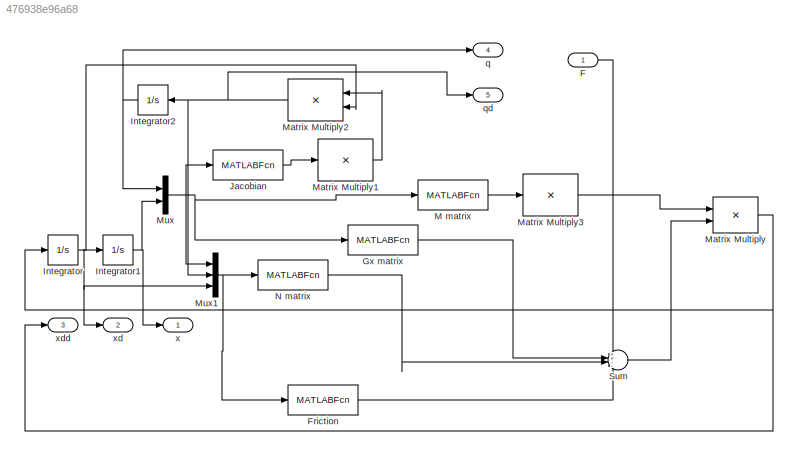
MODEL slx_476938e96a68
KIND model
CONFIG AbsTol = auto
CONFIG EnableMultiTasking = off
CONFIG FixedStep = auto
CONFIG MaxStep = auto
CONFIG MinStep = auto
CONFIG RelTol = 1e-3
CONFIG SampleTimeConstraint = Unconstrained
CONFIG Solver = VariableStepAuto
CONFIG SolverName = VariableStepAuto
CONFIG StartTime = 0.0
CONFIG StopTime = 10.0
BLOCK [Inport] F
  IconDisplay = Port number
  PortDimensions = 3
BLOCK [MATLABFcn] Friction
  MATLABFcn = frictionMatrix(u)
  Output1D = off
  OutputDimensions = 3
  Ports = [1, 1]
BLOCK [MATLABFcn] Gx matrix
  MATLABFcn = Gxmatrix(u)
  Output1D = off
  OutputDimensions = 3
  Ports = [1, 1]
BLOCK [Integrator] Integrator
  InitialCondition = xd0
  Ports = [1, 1]
BLOCK [Integrator] Integrator1
  InitialCondition = x0
  Ports = [1, 1]
BLOCK [Integrator] Integrator2
  InitialCondition = q0
  Ports = [1, 1]
BLOCK [MATLABFcn] Jacobian
  MATLABFcn = deltaJacobian(u)
  Output1D = off
  Ports = [1, 1]
BLOCK [MATLABFcn] M matrix
  MATLABFcn = Mmatrix(u)
  Output1D = off
  Ports = [1, 1]
BLOCK [Product] Matrix Multiply
  InputSameDT = off
  Multiplication = Matrix(*)
  OutDataTypeStr = Inherit: Inherit via internal rule
  Ports = [2, 1]
  RndMeth = Floor
  SaturateOnIntegerOverflow = off
BLOCK [Product] Matrix Multiply1
  InputSameDT = off
  Inputs = /
  Multiplication = Matrix(*)
  OutDataTypeStr = Inherit: Inherit via internal rule
  Ports = [1, 1]
  RndMeth = Floor
  SaturateOnIntegerOverflow = off
BLOCK [Product] Matrix Multiply2
  InputSameDT = off
  Multiplication = Matrix(*)
  OutDataTypeStr = Inherit: Inherit via internal rule
  Ports = [2, 1]
  RndMeth = Floor
  SaturateOnIntegerOverflow = off
BLOCK [Product] Matrix Multiply3
  InputSameDT = off
  Inputs = /
  Multiplication = Matrix(*)
  OutDataTypeStr = Inherit: Inherit via internal rule
  Ports = [1, 1]
  RndMeth = Floor
  SaturateOnIntegerOverflow = off
BLOCK [Mux] Mux
  DisplayOption = bar
  Inputs = 2
  Ports = [2, 1]
BLOCK [Mux] Mux1
  DisplayOption = bar
  Inputs = 3
  Ports = [3, 1]
BLOCK [MATLABFcn] N matrix
  MATLABFcn = Nmatrix(u)
  Ports = [1, 1]
BLOCK [Sum] Sum
  IconShape = round
  InputSameDT = off
  Inputs = ++--
  OutDataTypeStr = Inherit: Inherit via internal rule
  Ports = [4, 1]
  SaturateOnIntegerOverflow = off
BLOCK [Outport] q
  IconDisplay = Port number
  Port = 4
BLOCK [Outport] qd
  IconDisplay = Port number
  Port = 5
BLOCK [Outport] x
  IconDisplay = Port number
BLOCK [Outport] xd
  IconDisplay = Port number
  Port = 2
BLOCK [Outport] xdd
  IconDisplay = Port number
  Port = 3
LINE F:1 -> Sum:1
LINE Friction:1 -> Sum:4
LINE Gx matrix:1 -> Sum:2
NET Integrator1:1 -> Mux:2, x:1
NET Integrator2:1 -> Mux:1, q:1
NET Integrator:1 -> Integrator1:1, Matrix Multiply2:2, Mux1:3, xd:1
LINE Jacobian:1 -> Matrix Multiply1:1
LINE M matrix:1 -> Matrix Multiply3:1
LINE Matrix Multiply1:1 -> Matrix Multiply2:1
NET Matrix Multiply2:1 -> Integrator2:1, Mux1:2, qd:1
LINE Matrix Multiply3:1 -> Matrix Multiply:1
NET Matrix Multiply:1 -> Integrator:1, xdd:1
NET Mux1:1 -> Friction:1, N matrix:1
NET Mux:1 -> Gx matrix:1, Jacobian:1, M matrix:1, Mux1:1
LINE N matrix:1 -> Sum:3
LINE Sum:1 -> Matrix Multiply:2
note: NET lines group one-source signal fan-out (src -> all destinations, sorted); 1:1 wires keep LINE
